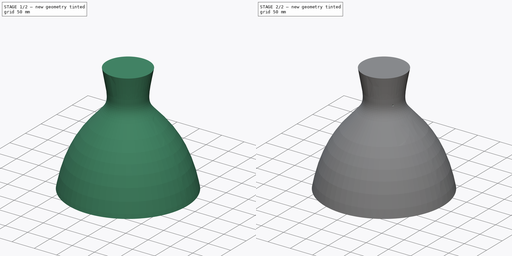
[diagram: build sequence overview — one tinted view per stage of 2, left to right]
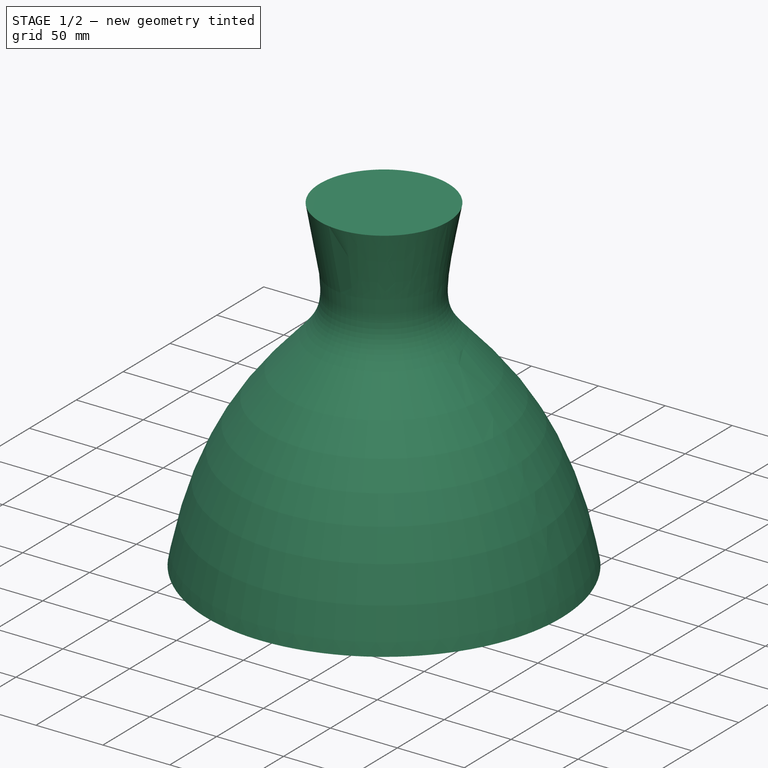
[diagram: stage 1 of 2 — iso view after this stage's code; geometry added in this stage tinted green]
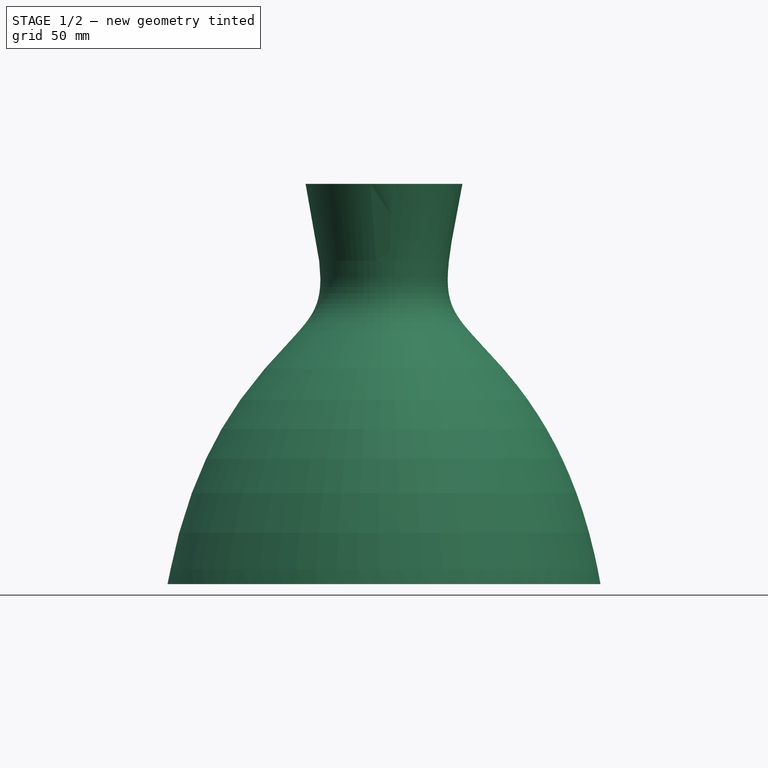
[diagram: stage 1 of 2 — front view after this stage's code; geometry added in this stage tinted green]
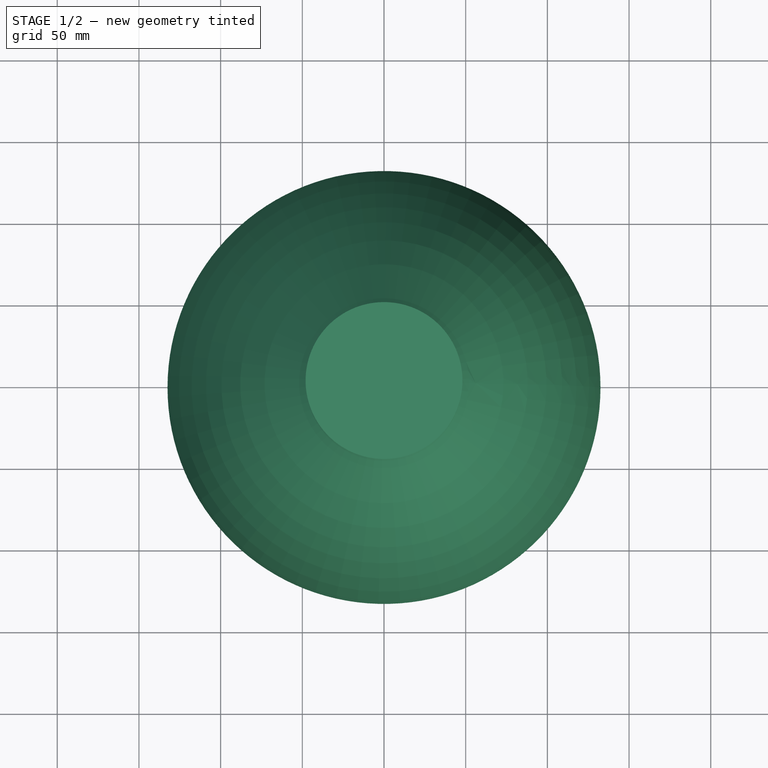
[diagram: stage 1 of 2 — top view after this stage's code; geometry added in this stage tinted green]
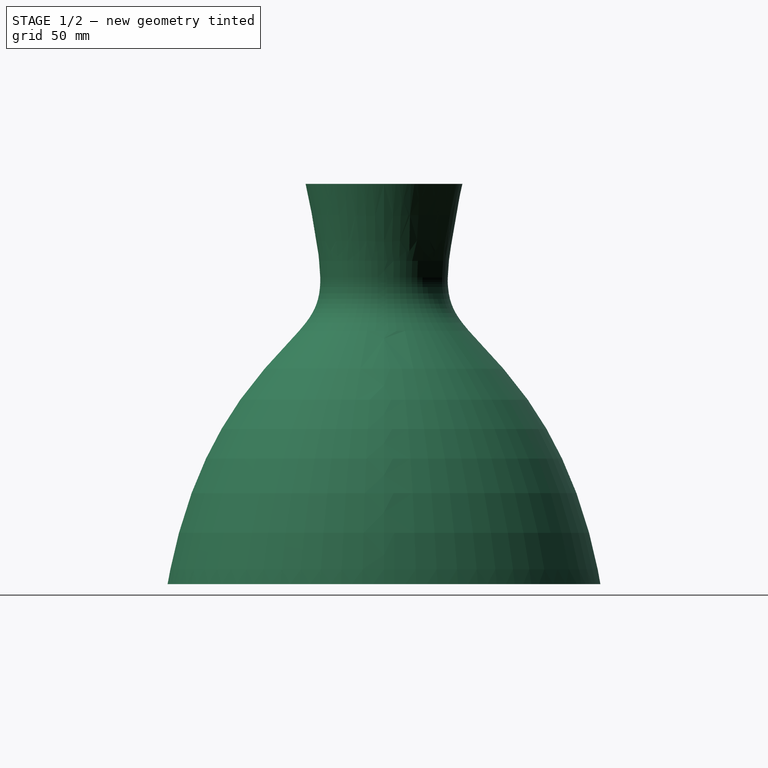
[diagram: stage 1 of 2 — right view after this stage's code; geometry added in this stage tinted green]
FCSTD DOCUMENT  (FreeCAD 0.20R29603 (Git))
Label: kitchen_lamp_shade_replacement_smaller_vase
License: All rights reserved
LicenseURL: http://en.wikipedia.org/wiki/All_rights_reserved
objects: Sketcher::SketchObject×3, PartDesign::Revolution×1, PartDesign::Plane×1, PartDesign::Hole×1, PartDesign::PolarPattern×1, PartDesign::Body×1
note: 10 computed .brp shape members not serialized (recipe doc carries the construction recipe); baked Part::Feature solids carry a one-line shape summary decoded from their .brp

FEATURE [Sketcher::SketchObject] Sketch
  FullyConstrained = false
  MapMode = 5
  Placement = pos=(0,0,0) rot=(1,0,0;1.5708rad)
  Support = -> [XZ_Plane]
  sketch-geometry (14):
    g0: LineSegment StartX=0 StartY=0 StartZ=0 EndX=0 EndY=245 EndZ=0
    g1: LineSegment StartX=0 StartY=245 StartZ=0 EndX=48 EndY=245 EndZ=0
    g2: LineSegment StartX=0 StartY=0 StartZ=0 EndX=132.5 EndY=0 EndZ=0
    g3-g7: Circle x5 (B-spline internal-alignment scaffolding for g8; pole/knot coordinates omitted)
    g8: BSplineCurve PolesCount=5 KnotsCount=3 Degree=3 IsPeriodic=0
    g9: GeomPoint X=48 Y=245 Z=0
    g10: GeomPoint X=55.3881 Y=151.21 Z=0
    g11: GeomPoint X=132.5 Y=0 Z=0
    g12: GeomPoint X=35 Y=185 Z=0
    g13: LineSegment StartX=40 StartY=231.38 StartZ=0 EndX=40 EndY=148.525 EndZ=0
  constraints (24):
    c: Coincident(g0,g-1)
    c: PointOnObject(g0,g-2)
    c: Coincident(g1,g0)
    c: Horizontal(g1)
    c: Coincident(g2,g0)
    c: PointOnObject(g2,g-1)
    c: Weight(g3) = 1
    c: Coincident(g8,g1)
    c: Equal(g3, g4-g7) x4
    c: Coincident(g8,g2)
    c: InternalAlignment(g3-g7 -> g8) x5
    c: InternalAlignment(g9,g8)
    c: InternalAlignment(g10,g8)
    c: InternalAlignment(g11,g8)
    c: DistanceY(g0,g0) = 245  'height'
    c: DistanceX(g2,g2) = 132.5  'radius_bottom'
    c: DistanceX(g1,g1) = 48  'radius_top'
    c: Vertical(g5,g4)
    c: DistanceY(g5,g4) = 13
    c: DistanceX(g0,g4) = 35
    c: DistanceY(g12) = 185  'height_neck'
    c: Vertical(g13)
    c: Vertical(g12,g4)
    c: DistanceX(g0,g13) = 40  'neck_radii'
FEATURE [PartDesign::Revolution] Revolution
  Angle = 360
  Axis = (0,-2e-16,1)
  Base = (0,0,0)
  Placement = pos=(0,0,0) rot=(1,0,0;1.5708rad)
  Profile = -> Sketch
  ReferenceAxis = -> Sketch [V_Axis]
  Reversed = true
FEATURE [PartDesign::Plane] DatumPlane
  AttachmentOffset = pos=(0,-41,0) rot=(0,-0.707107,0.707107;3.14159rad)
  Length = 318.221
  MapMode = 5
  Placement = pos=(0,41,9.1e-15) rot=(0,-0.707107,-0.707107;3.14159rad)
  ResizeMode = 0
  Support = -> [Revolution]
  Width = 323.472
FEATURE [Sketcher::SketchObject] Sketch001
  FullyConstrained = true
  MapMode = 5
  Placement = pos=(0,0,0) rot=(1,0,0;1.5708rad)
  Support = -> [XZ_Plane]
  expr: Constraints[1] = Sketch.Constraints.height_neck
  sketch-geometry (1):
    g0: Circle CenterX=0 CenterY=185 CenterZ=0 NormalX=0 NormalY=0 NormalZ=1 AngleXU=0 Radius=3
  constraints (3):
    c: PointOnObject(g0,g-2)
    c: DistanceY(g-1,g0) = 185
    c: Diameter(g0) = 6
FEATURE [Sketcher::SketchObject] Sketch002
  FullyConstrained = false
  MapMode = 5
  Placement = pos=(0,41,9.1e-15) rot=(0,0.707107,0.707107;3.14159rad)
  Support = -> [DatumPlane]
  sketch-geometry (1):
    g0: Circle CenterX=0 CenterY=184.9 CenterZ=0 NormalX=0 NormalY=0 NormalZ=1 AngleXU=0 Radius=3.5301
  constraints (1):
    c: PointOnObject(g0,g-2)
FEATURE [PartDesign::Hole] Hole
  BaseFeature = -> Revolution
  CustomThreadClearance = 0
  Depth = 2
  DepthType = 0
  Diameter = 4
  DrillForDepth = false
  DrillPoint = 1
  DrillPointAngle = 118
  HoleCutCountersinkAngle = 90
  HoleCutCustomValues = false
  HoleCutDepth = 0
  HoleCutDiameter = 6.1
  HoleCutType = 0
  ModelThread = false
  Placement = pos=(0,0,0) rot=(1,0,0;1.5708rad)
  Profile = -> Sketch002
  Tapered = false
  TaperedAngle = 90
  ThreadClass = 0
  ThreadDepth = 2
  ThreadDepthType = 0
  ThreadDirection = 0
  ThreadFit = 0
  ThreadSize = 0
  ThreadType = 0
  Threaded = false
  UseCustomThreadClearance = false
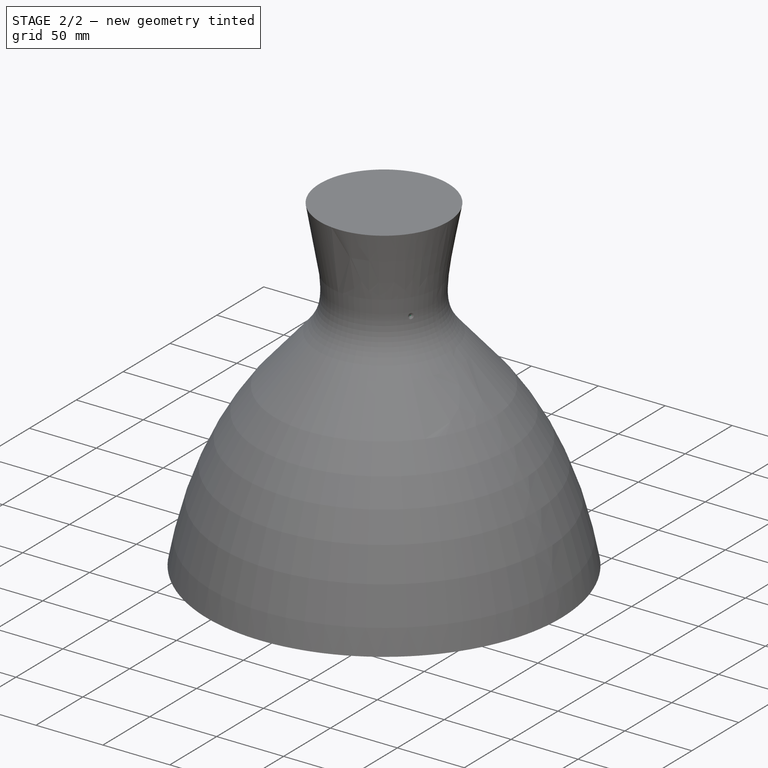
[diagram: stage 2 of 2 — iso view after this stage's code; geometry added in this stage tinted green]
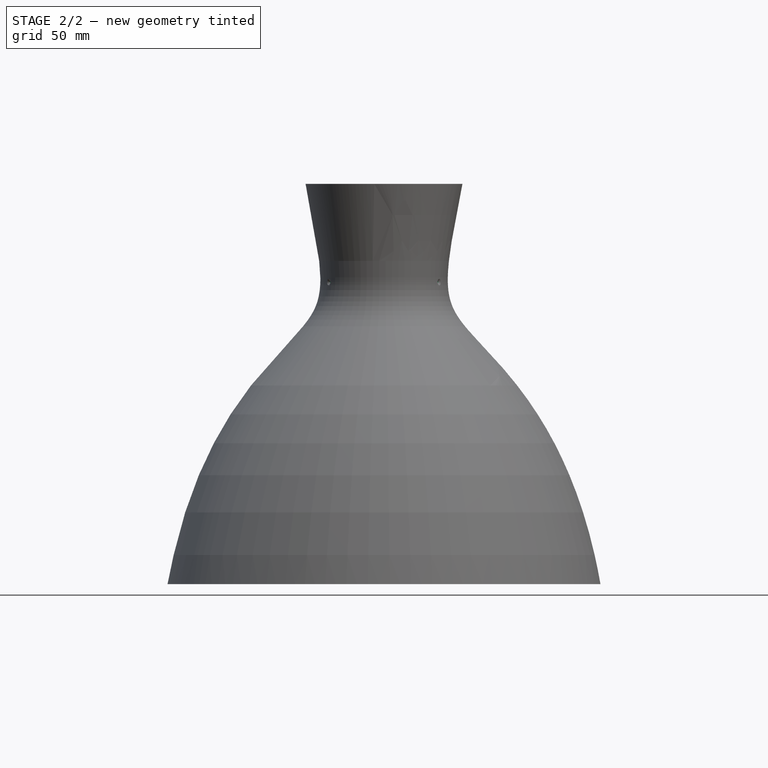
[diagram: stage 2 of 2 — front view after this stage's code; geometry added in this stage tinted green]
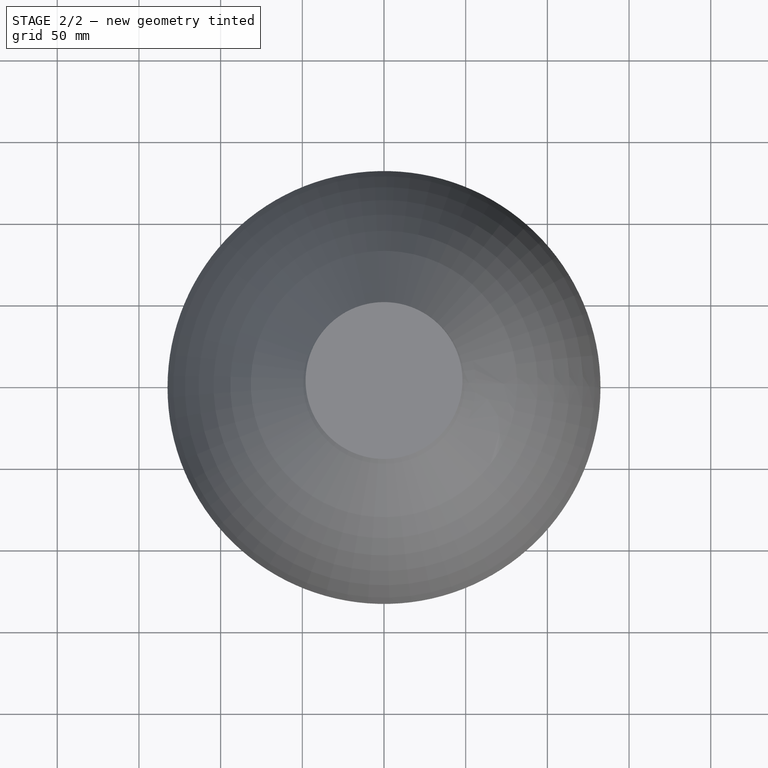
[diagram: stage 2 of 2 — top view after this stage's code; geometry added in this stage tinted green]
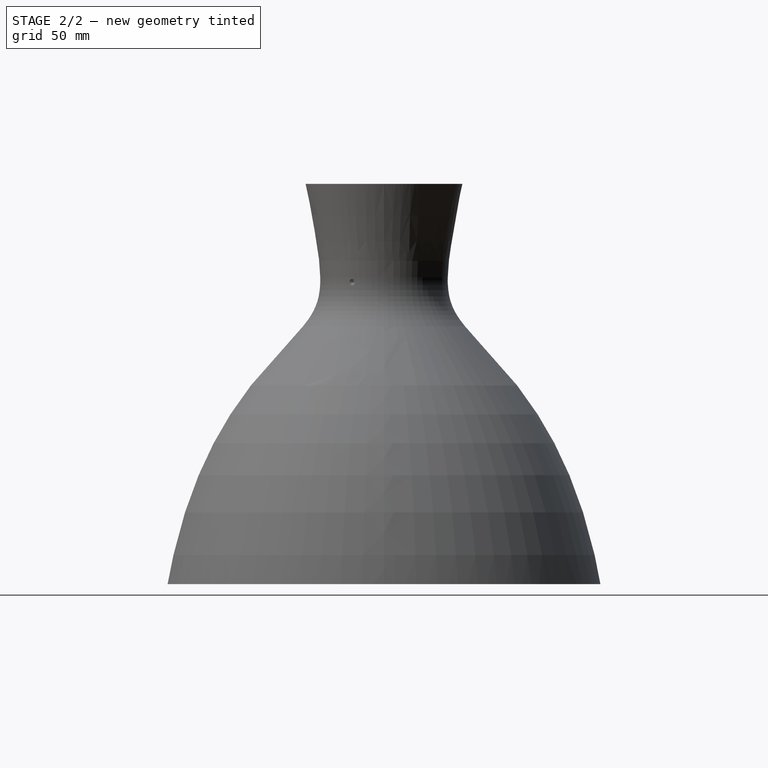
[diagram: stage 2 of 2 — right view after this stage's code; geometry added in this stage tinted green]
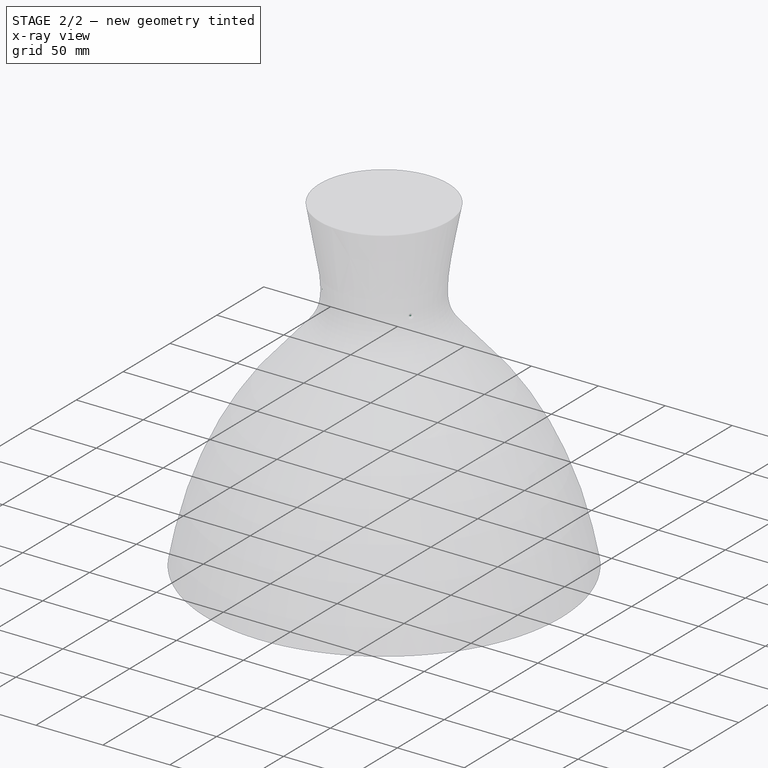
[diagram: stage 2 of 2 — x-ray composite at the iso view; earlier geometry ghosted, this stage's added geometry solid]
FEATURE [PartDesign::PolarPattern] PolarPattern
  Angle = 360
  Axis = -> Z_Axis
  BaseFeature = -> Hole
  Occurrences = 3
  Originals = -> [Hole]
  Placement = pos=(0,0,0) rot=(1,0,0;1.5708rad)
FEATURE [PartDesign::Body] Body
  Group = -> [Sketch,Revolution,Sketch001,DatumPlane,Sketch002,Hole,PolarPattern]
  Origin = -> Origin
  Tip = -> PolarPattern
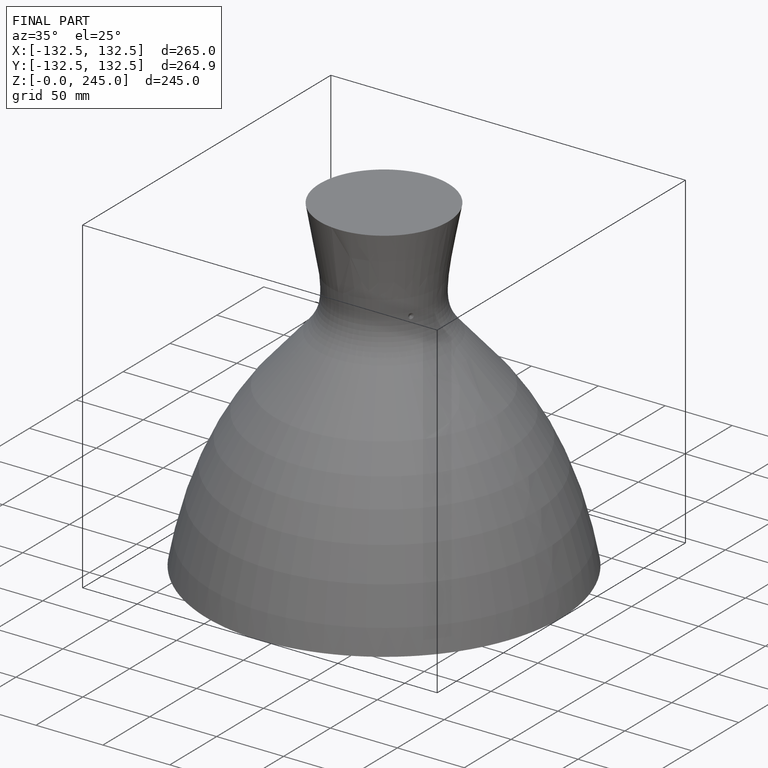
[diagram: finished part — iso view with bounding-box wireframe]
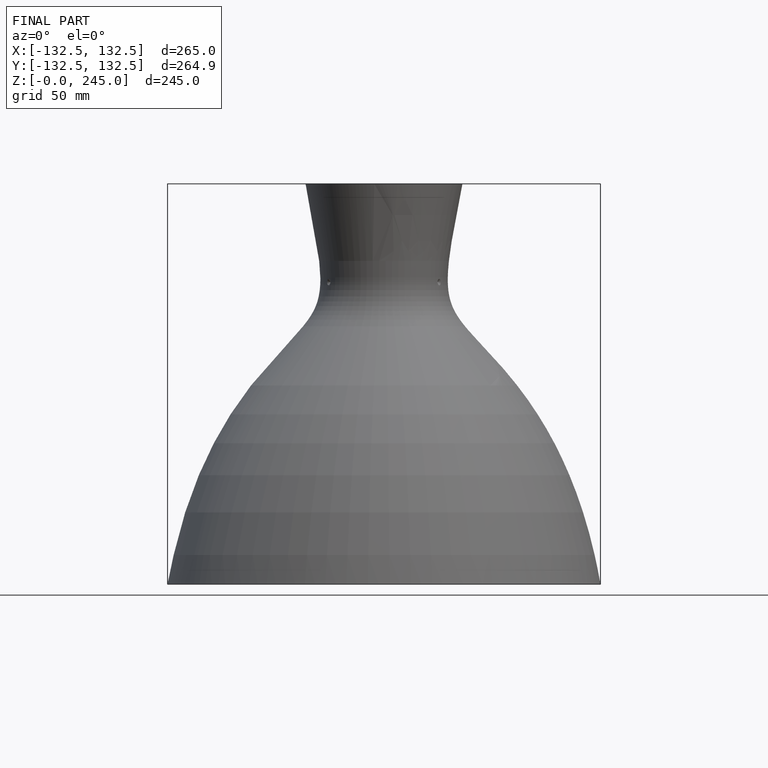
[diagram: finished part — front view with bounding-box wireframe]
